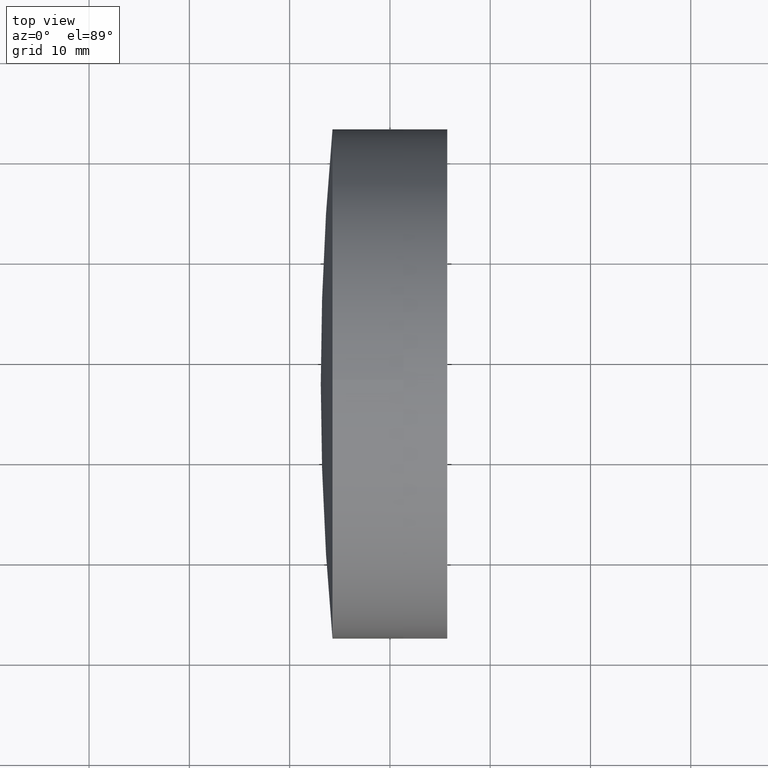
[diagram: clean part render]
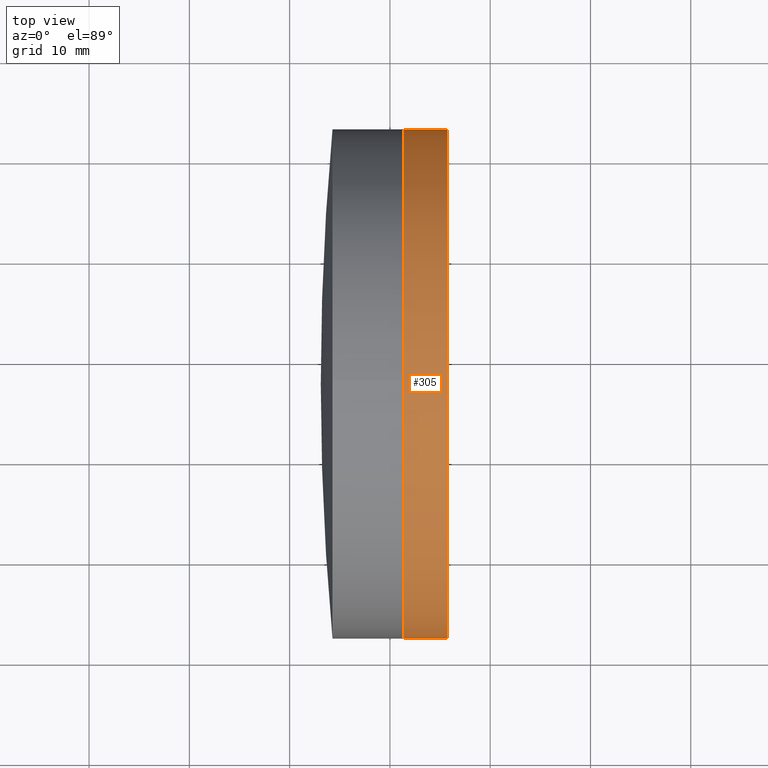
[diagram: same view with one face highlighted and labeled with its STEP entity id]
A machine part, top view. The second image highlights one B-rep face of the part: STEP entity #305.
In plain terms, the highlighted cylindrical surface (partial cylindrical patch) has radius 25.4 mm, axis along (1, 0, -0).
Its self-contained STEP definition (entity closure, byte-faithful):
#3 = CARTESIAN_POINT ( 'NONE',  ( -98.67517410788651944, -7.811054350804359281, 3.110602869834457120E-15 ) ) ;
#4 = LINE ( 'NONE', #39, #311 ) ;
#5 = DIRECTION ( 'NONE',  ( 1.000000000000000000, 1.224646799147352961E-16, -0.000000000000000000 ) ) ;
#30 = DIRECTION ( 'NONE',  ( 1.000000000000000000, 1.224646799147352961E-16, -0.000000000000000000 ) ) ;
#31 = VERTEX_POINT ( 'NONE', #343 ) ;
#32 = EDGE_CURVE ( 'NONE', #31, #257, #4, .T. ) ;
#39 = CARTESIAN_POINT ( 'NONE',  ( -94.28535173173268902, 42.98894564919700656, 0.000000000000000000 ) ) ;
#44 = CARTESIAN_POINT ( 'NONE',  ( -94.28535173173268902, 42.98894564919700656, 0.000000000000000000 ) ) ;
#45 = VECTOR ( 'NONE', #30, 1000.000000000000000 ) ;
#47 = VERTEX_POINT ( 'NONE', #291 ) ;
#96 = EDGE_CURVE ( 'NONE', #31, #168, #219, .T. ) ;
#97 = DIRECTION ( 'NONE',  ( 0.000000000000000000, 1.000000000000000000, 0.000000000000000000 ) ) ;
#127 = DIRECTION ( 'NONE',  ( 1.000000000000000000, 1.224646799147352961E-16, -0.000000000000000000 ) ) ;
#128 = DIRECTION ( 'NONE',  ( 0.000000000000000000, 1.000000000000000000, 0.000000000000000000 ) ) ;
#138 = ORIENTED_EDGE ( 'NONE', *, *, #225, .F. ) ;
#157 = CYLINDRICAL_SURFACE ( 'NONE', #289, 25.39999999999999858 ) ;
#167 = LINE ( 'NONE', #283, #45 ) ;
#168 = VERTEX_POINT ( 'NONE', #3 ) ;
#176 = DIRECTION ( 'NONE',  ( 1.000000000000000000, 1.224646799147352961E-16, -0.000000000000000000 ) ) ;
#181 = FACE_OUTER_BOUND ( 'NONE', #228, .T. ) ;
#182 = CARTESIAN_POINT ( 'NONE',  ( -94.28535173173268902, 17.58894564919701153, 0.000000000000000000 ) ) ;
#195 = ORIENTED_EDGE ( 'NONE', *, *, #96, .T. ) ;
#196 = EDGE_CURVE ( 'NONE', #168, #47, #167, .T. ) ;
#208 = DIRECTION ( 'NONE',  ( 1.000000000000000000, 1.224646799147352961E-16, -0.000000000000000000 ) ) ;
#219 = CIRCLE ( 'NONE', #280, 25.39999999999999858 ) ;
#224 = DIRECTION ( 'NONE',  ( 0.000000000000000000, 1.000000000000000000, 0.000000000000000000 ) ) ;
#225 = EDGE_CURVE ( 'NONE', #257, #47, #272, .T. ) ;
#228 = EDGE_LOOP ( 'NONE', ( #195, #239, #138, #281 ) ) ;
#239 = ORIENTED_EDGE ( 'NONE', *, *, #196, .T. ) ;
#257 = VERTEX_POINT ( 'NONE', #44 ) ;
#264 = AXIS2_PLACEMENT_3D ( 'NONE', #182, #127, #97 ) ;
#272 = CIRCLE ( 'NONE', #264, 25.39999999999999858 ) ;
#280 = AXIS2_PLACEMENT_3D ( 'NONE', #349, #5, #224 ) ;
#281 = ORIENTED_EDGE ( 'NONE', *, *, #32, .F. ) ;
#283 = CARTESIAN_POINT ( 'NONE',  ( -94.28535173173268902, -7.811054350802988822, 3.110602869834276865E-15 ) ) ;
#289 = AXIS2_PLACEMENT_3D ( 'NONE', #300, #208, #128 ) ;
#291 = CARTESIAN_POINT ( 'NONE',  ( -94.28535173173268902, -7.811054350802988822, 3.110602869834276865E-15 ) ) ;
#300 = CARTESIAN_POINT ( 'NONE',  ( -94.28535173173268902, 17.58894564919701153, 0.000000000000000000 ) ) ;
#305 = ADVANCED_FACE ( 'NONE', ( #181 ), #157, .T. ) ;
#311 = VECTOR ( 'NONE', #176, 1000.000000000000000 ) ;
#343 = CARTESIAN_POINT ( 'NONE',  ( -98.67517410788651944, 42.98894564919847738, 0.000000000000000000 ) ) ;
#349 = CARTESIAN_POINT ( 'NONE',  ( -98.67517410788653365, 17.58894564919701153, 0.000000000000000000 ) ) ;